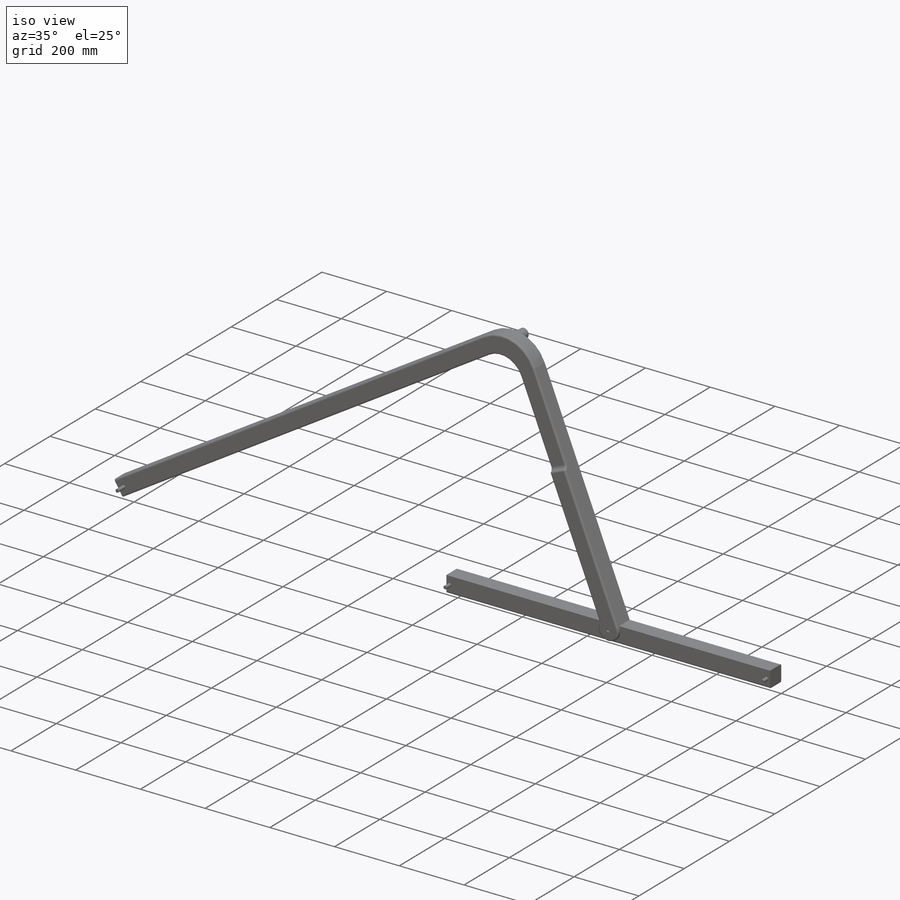
[diagram: iso view]
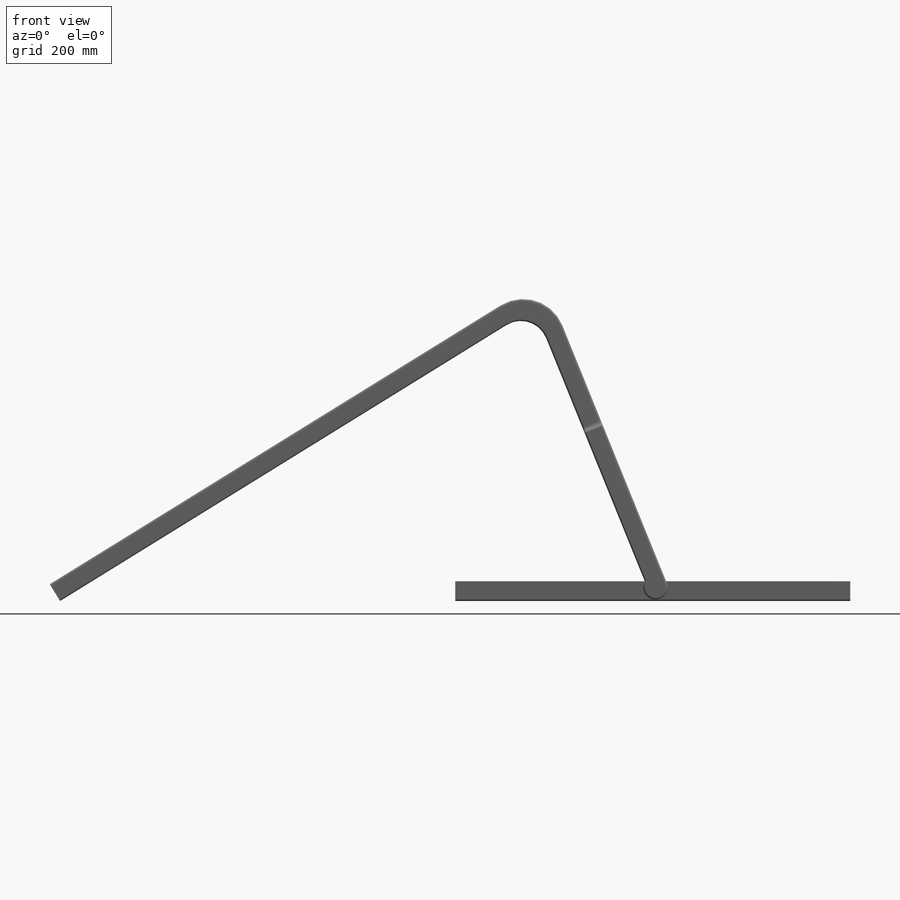
[diagram: front view]
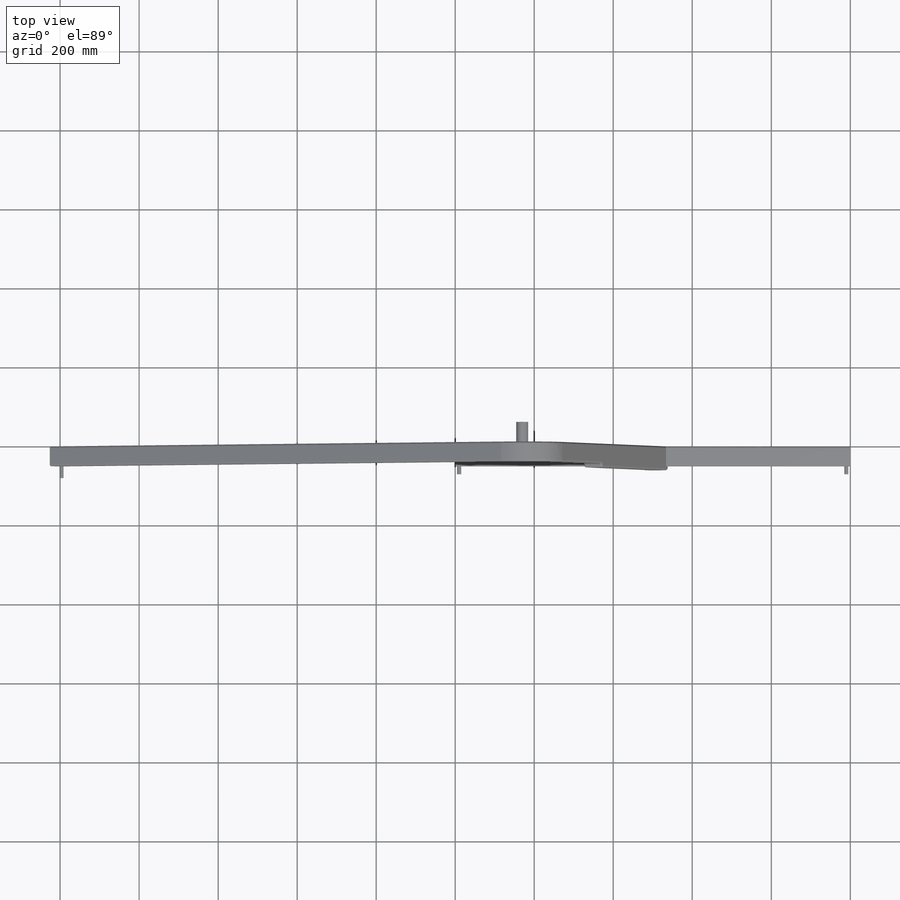
[diagram: top view]
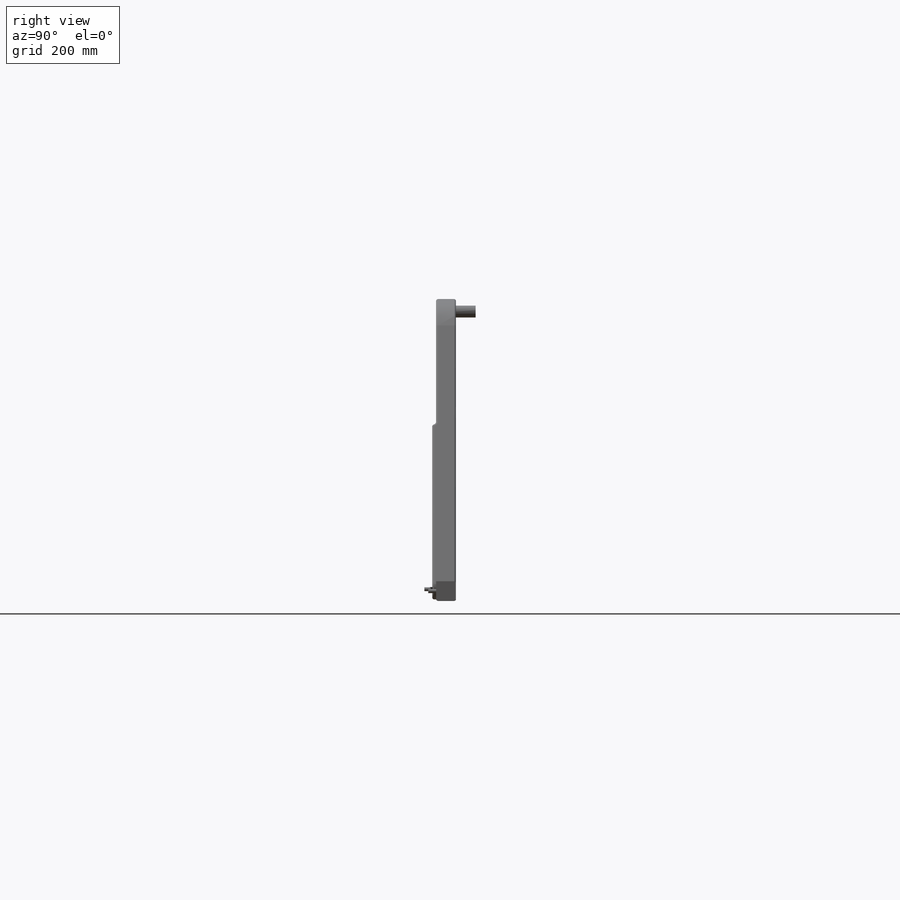
[diagram: right view]
SOLIDWORKS PART (.sldprt)
format: sldprt  version: not decoded by parser v0  size: 452,608 bytes
history: native  units: mm
features: sketch x7, extrude x6, fillet x3, material x1, cut_extrude x1 (+13 scaffold rows collapsed)
feature tree (31):
  scaffold x13  (default folders/planes/origin — collapsed)
  material  "Material <not specified>"
  sketch  "Sketch1"  dims[c1.D5=~87.657866mm c1.D6=~68.918563mm c1.D7=~103.988007mm c1.D1=1410.0mm c1.D2=800.0mm c1.D3=1500.0mm c1.D4=~499.936988mm c2.D5=50.0mm c2.D6=~54.11989mm c2.D4=50.0mm]
  extrude  "Extrude1"  Depth=50mm
  sketch  "Sketch2"  dims[c1.D2=~68.918563mm c1.D1=~103.988007mm c1.D3=30.0mm c2.D1=75.0mm c2.D2=~82.714491mm c2.D3=~78.884726mm c3.D2=90.0mm]
  extrude  "Extrude2"  Depth=100mm
  sketch  "Sketch3"  dims[D1=10.0mm D2=30.0mm D3=30.0mm]
  extrude  "Extrude3"  Depth=30mm
  sketch  "Sketch4"  dims[D1=1000.0mm D2=500.0mm D3=50.0mm]
  extrude  "Extrude4"  Depth=50mm
  sketch  "Sketch5"  dims[D1=~30.946794mm D2=50.0mm]
  extrude  "Extrude5"  Depth=10mm
  fillet  "Fillet1"  Radius=10mm
  fillet  "Fillet3"  Radius=5mm
  fillet  "Fillet4"  Radius=5mm
  sketch  "Sketch6"  dims[D1=10.0mm]
  cut_extrude  "Cut-Extrude2"  Depth=5mm
  sketch  "Sketch7"  dims[D1=10.0mm D2=10.0mm D3=10.0mm D4=25.0mm D5=10.0mm D6=25.0mm]
  extrude  "Extrude6"  Depth=20mm
decode coverage: 17 of 17 modeling features carry decoded parameters
note: ~ marks probable driven/reference dimensions
note: suppression state not decoded; provenance and decode notes live in map.json
